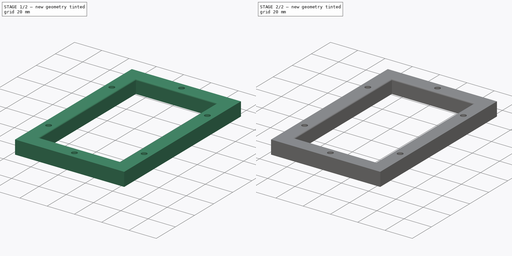
[diagram: build sequence overview — one tinted view per stage of 2, left to right]
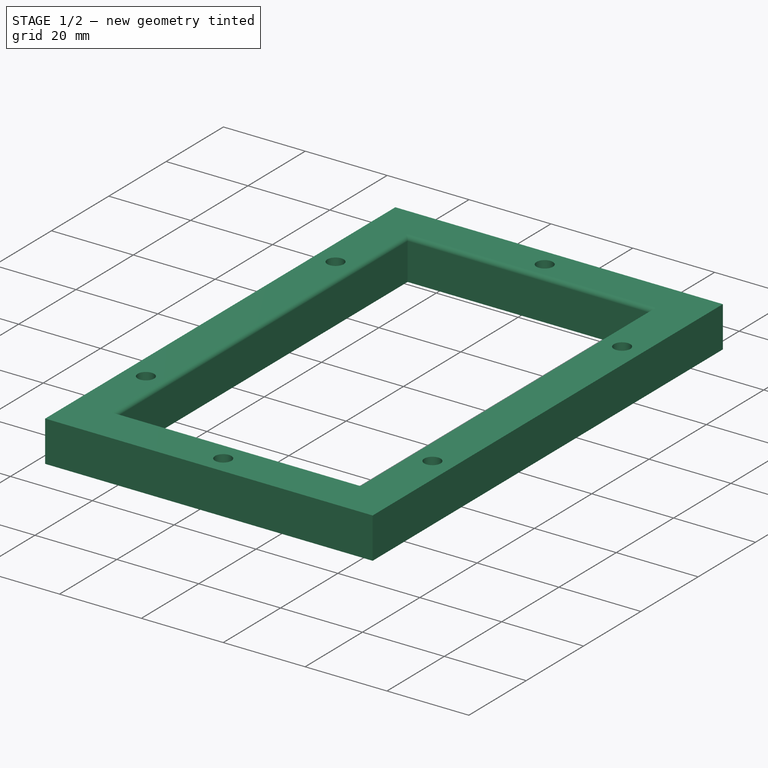
[diagram: stage 1 of 2 — iso view after this stage's code; geometry added in this stage tinted green]
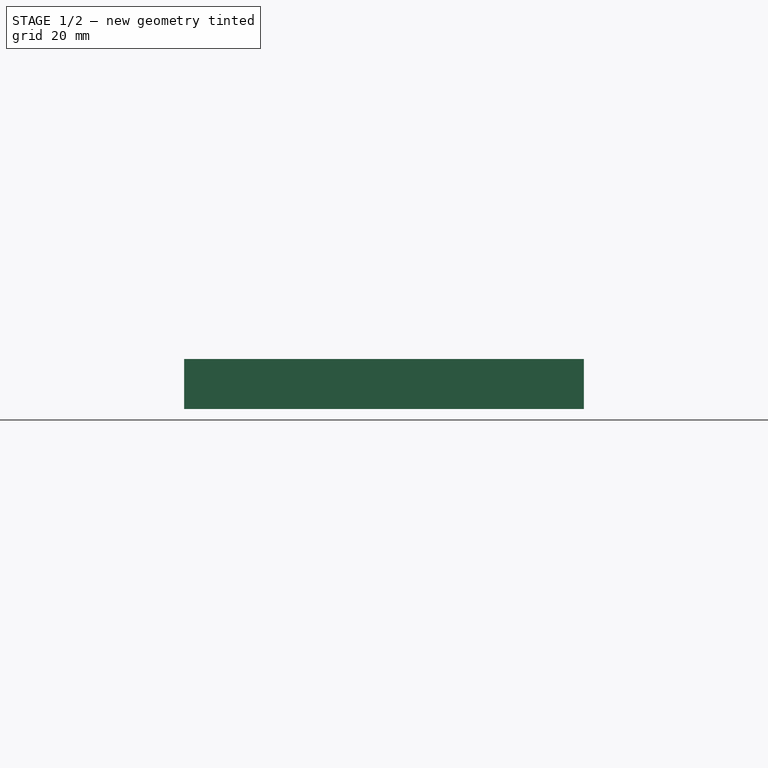
[diagram: stage 1 of 2 — front view after this stage's code; geometry added in this stage tinted green]
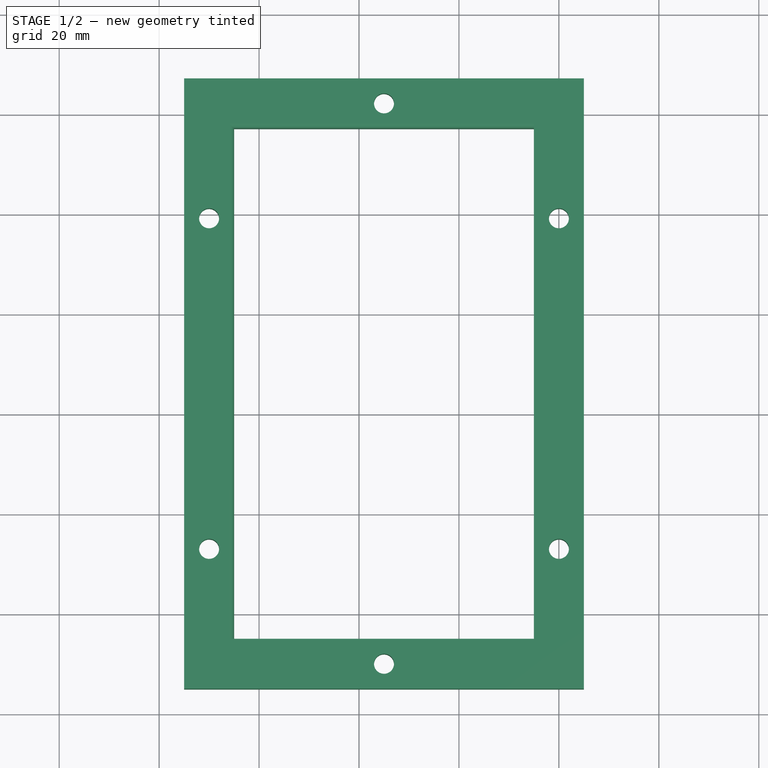
[diagram: stage 1 of 2 — top view after this stage's code; geometry added in this stage tinted green]
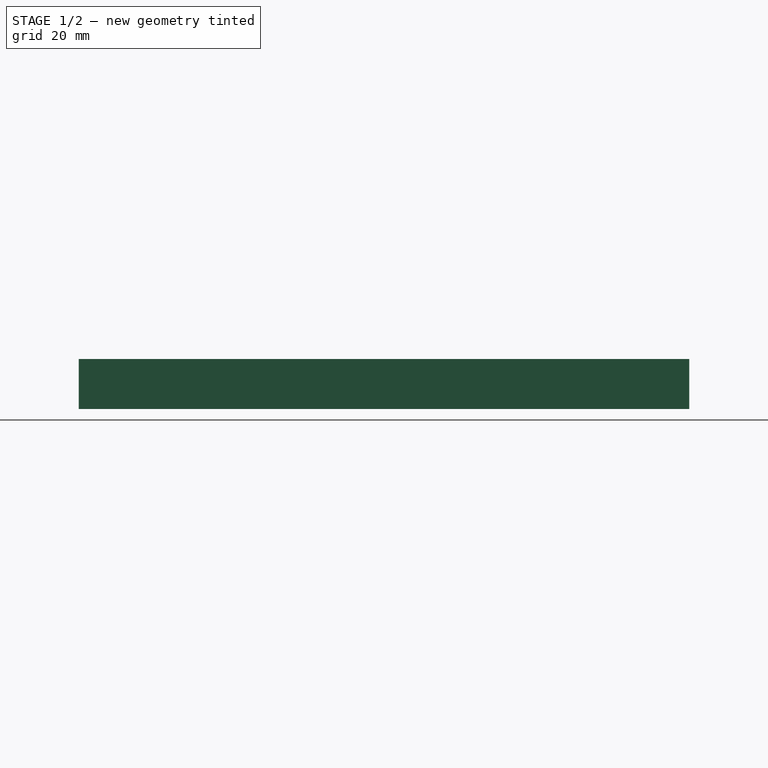
[diagram: stage 1 of 2 — right view after this stage's code; geometry added in this stage tinted green]
FCSTD DOCUMENT  (FreeCAD 0.18R4 (GitTag))
Label: DeckeWohnzimmer
License: All rights reserved
LicenseURL: http://en.wikipedia.org/wiki/All_rights_reserved
objects: PartDesign::Fillet×2, Sketcher::SketchObject×1, PartDesign::Pad×1, PartDesign::Body×1
note: 6 computed .brp shape members not serialized (recipe doc carries the construction recipe); baked Part::Feature solids carry a one-line shape summary decoded from their .brp

FEATURE [Sketcher::SketchObject] Sketch
  sketch-geometry (14):
    g0: LineSegment StartX=5 StartY=127.16 StartZ=0 EndX=85 EndY=127.16 EndZ=0
    g1: LineSegment StartX=85 StartY=127.16 StartZ=0 EndX=85 EndY=5 EndZ=0
    g2: LineSegment StartX=85 StartY=5 StartZ=0 EndX=5 EndY=5 EndZ=0
    g3: LineSegment StartX=5 StartY=5 StartZ=0 EndX=5 EndY=127.16 EndZ=0
    g4: LineSegment StartX=15 StartY=117.16 StartZ=0 EndX=75 EndY=117.16 EndZ=0
    g5: LineSegment StartX=75 StartY=117.16 StartZ=0 EndX=75 EndY=15 EndZ=0
    g6: LineSegment StartX=75 StartY=15 StartZ=0 EndX=15 EndY=15 EndZ=0
    g7: LineSegment StartX=15 StartY=15 StartZ=0 EndX=15 EndY=117.16 EndZ=0
    g8: Circle CenterX=10 CenterY=99.16 CenterZ=0 NormalX=0 NormalY=0 NormalZ=1 AngleXU=0 Radius=2
    g9: Circle CenterX=10 CenterY=33 CenterZ=0 NormalX=0 NormalY=0 NormalZ=1 AngleXU=0 Radius=2
    g10: Circle CenterX=80 CenterY=99.16 CenterZ=0 NormalX=0 NormalY=0 NormalZ=1 AngleXU=0 Radius=2
    g11: Circle CenterX=80 CenterY=33 CenterZ=0 NormalX=0 NormalY=0 NormalZ=1 AngleXU=0 Radius=2
    g12: Circle CenterX=45 CenterY=122.16 CenterZ=0 NormalX=0 NormalY=0 NormalZ=1 AngleXU=0 Radius=2
    g13: Circle CenterX=45 CenterY=10 CenterZ=0 NormalX=0 NormalY=0 NormalZ=1 AngleXU=0 Radius=2
  constraints (42):
    c: Coincident(g0,g1)
    c: Coincident(g1,g2)
    c: Coincident(g2,g3)
    c: Coincident(g3,g0)
    c: Horizontal(g0)
    c: Horizontal(g2)
    c: Vertical(g1)
    c: Vertical(g3)
    c: Coincident(g4,g5)
    c: Coincident(g5,g6)
    c: Coincident(g6,g7)
    c: Coincident(g7,g4)
    c: Horizontal(g4)
    c: Horizontal(g6)
    c: Vertical(g5)
    c: Vertical(g7)
    c: DistanceX(g5,g1) = 10
    c: DistanceX(g2,g6) = 10
    c: DistanceY(g1,g5) = 10
    c: DistanceY(g4,g0) = 10
    c: DistanceY(g-1,g2) = 5
    c: DistanceX(g-1,g2) = 5
    c: Distance(g1) = 122.16
    c: Distance(g0) = 80
    c: Radius(g8) = 2
    c: Equal(g8,g10)
    c: Equal(g8,g11)
    c: Equal(g8,g9)
    c: Distance(g10,g5) = 5
    c: Distance(g11,g5) = 5
    c: Distance(g9,g7) = 5
    c: Distance(g8,g7) = 5
    c: Distance(g8,g0) = 28
    c: Distance(g10,g0) = 28
    c: Distance(g9,g2) = 28
    c: Distance(g11,g2) = 28
    c: Distance(g12,g3) = 40
    c: Equal(g10,g12)
    c: Distance(g12,g0) = 5
    c: Radius(g13) = 2
    c: Distance(g13,g3) = 40
    c: Distance(g13,g2) = 5
FEATURE [PartDesign::Pad] Pad
  Length = 10
  Length2 = 100
  Profile = -> Sketch
  Type = 0
FEATURE [PartDesign::Fillet] Fillet
  Base = -> Pad [Edge24,Edge16]
  BaseFeature = -> Pad
  Radius = 1
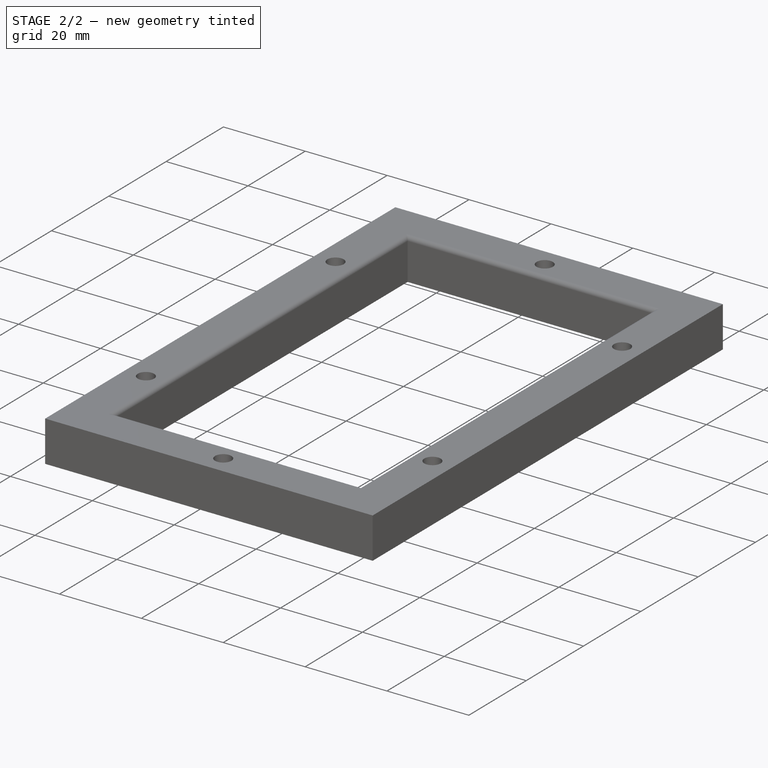
[diagram: stage 2 of 2 — iso view after this stage's code; geometry added in this stage tinted green]
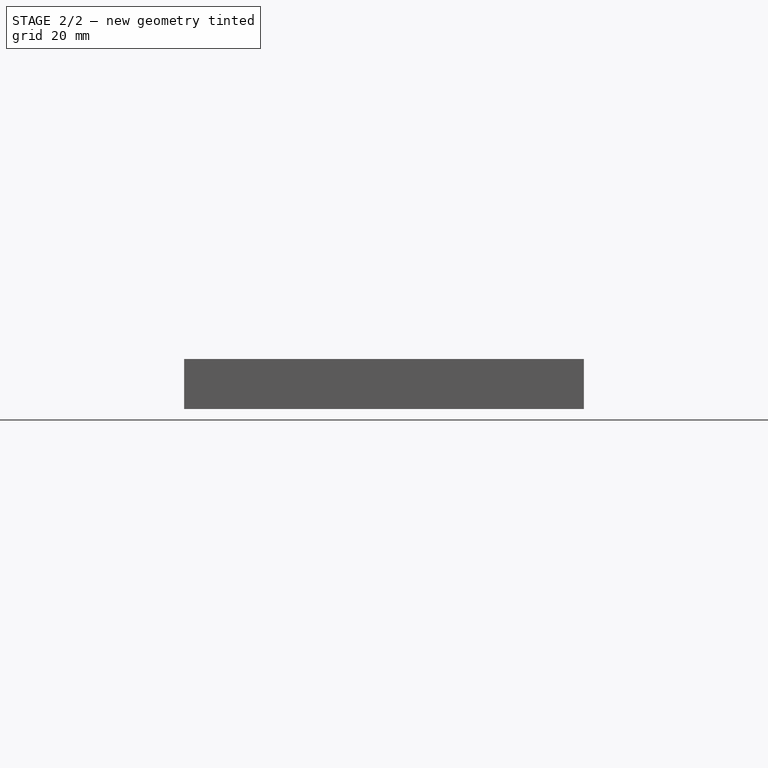
[diagram: stage 2 of 2 — front view after this stage's code; geometry added in this stage tinted green]
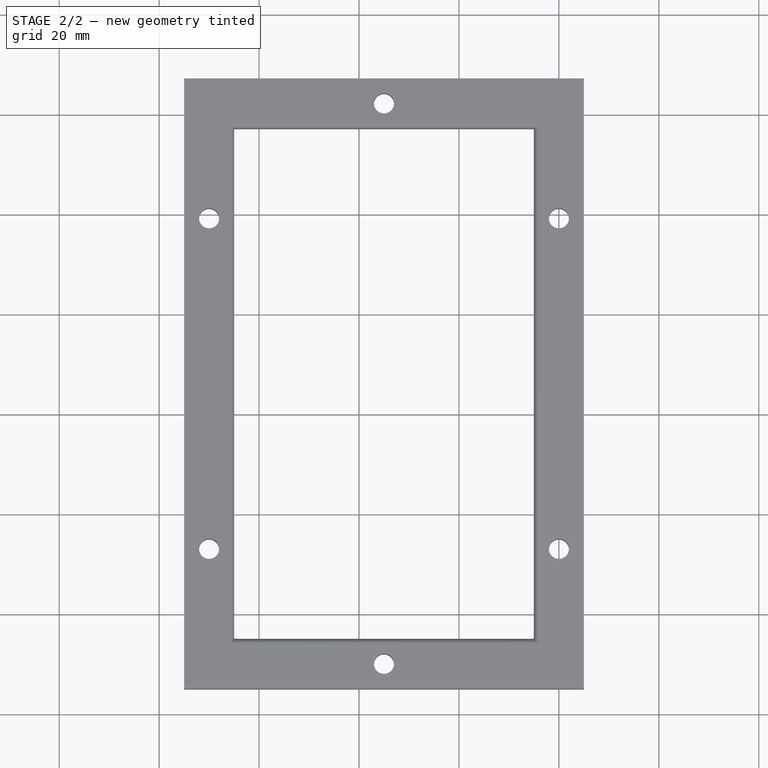
[diagram: stage 2 of 2 — top view after this stage's code; geometry added in this stage tinted green]
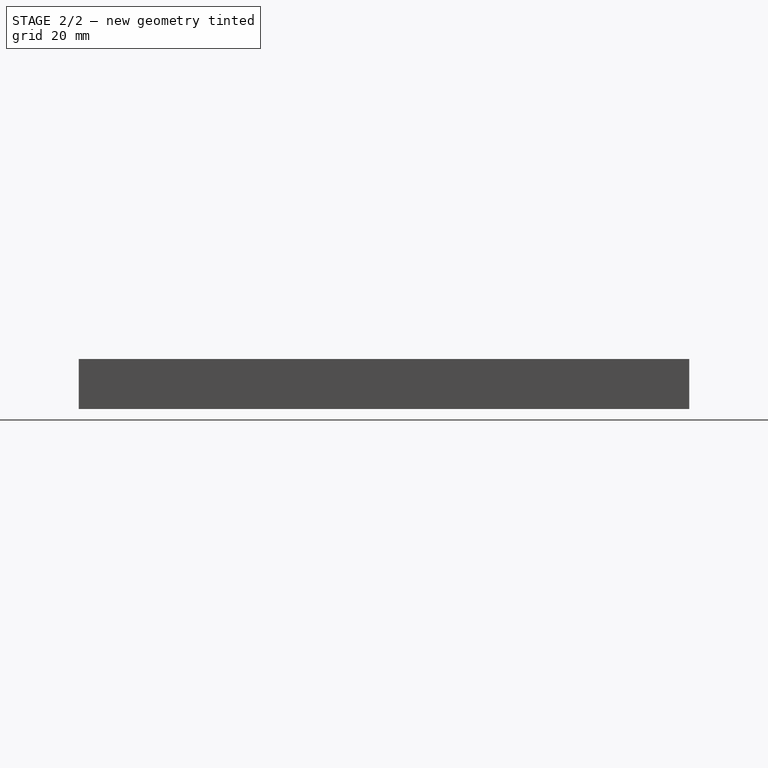
[diagram: stage 2 of 2 — right view after this stage's code; geometry added in this stage tinted green]
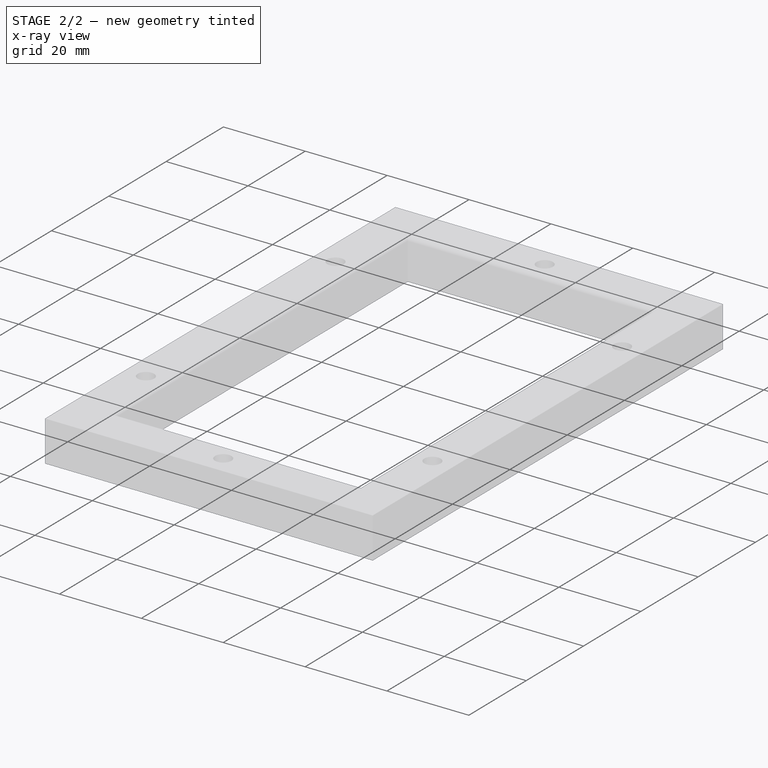
[diagram: stage 2 of 2 — x-ray composite at the iso view; earlier geometry ghosted, this stage's added geometry solid]
FEATURE [PartDesign::Fillet] Fillet001
  Base = -> Fillet [Edge9,Edge27]
  BaseFeature = -> Fillet
  Radius = 1
FEATURE [PartDesign::Body] Body
  Group = -> [Sketch,Pad,Fillet,Fillet001]
  Origin = -> Origin
  Tip = -> Fillet001
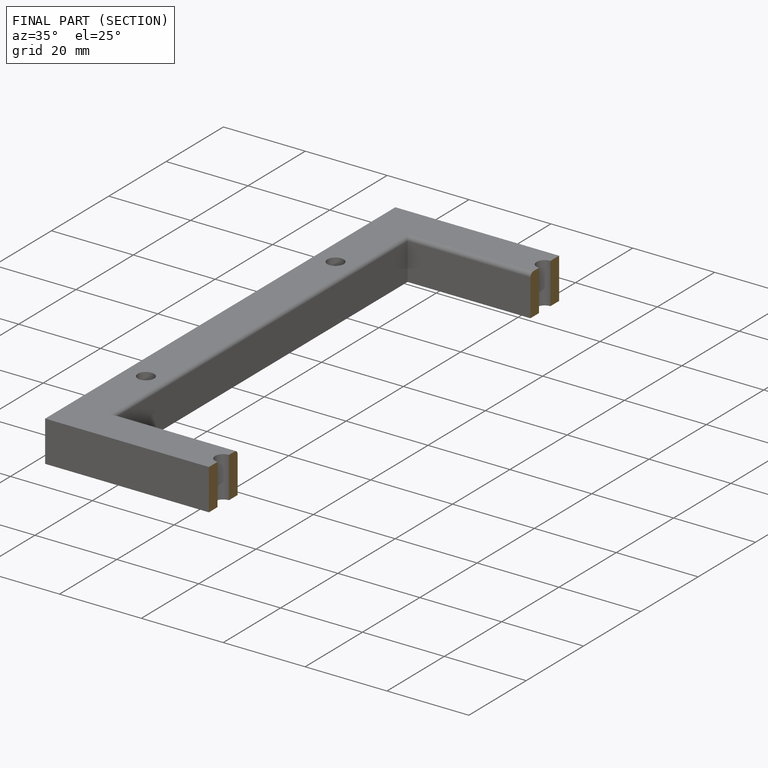
[diagram: finished part — half-section view (interior)]
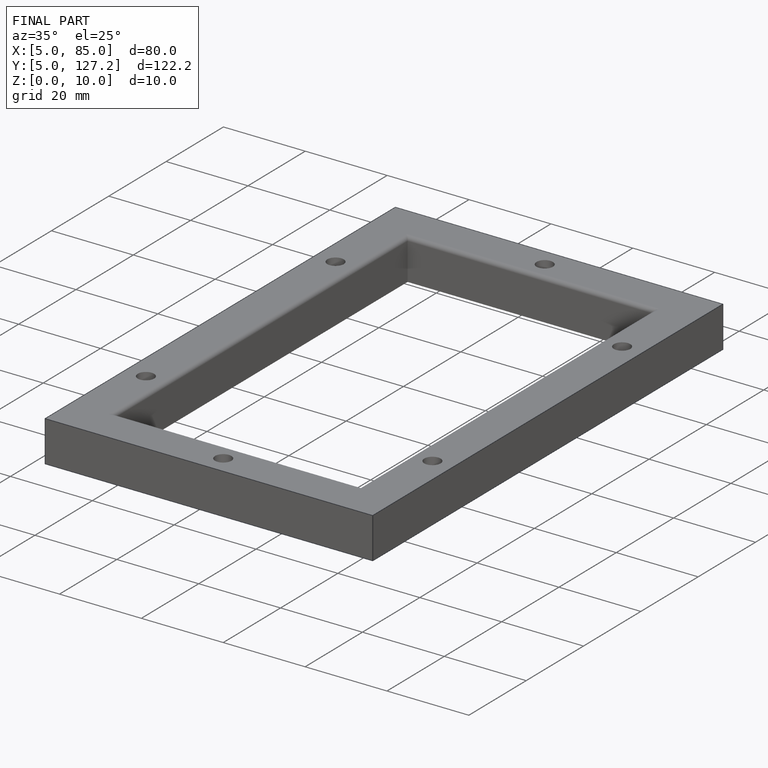
[diagram: finished part — iso view with bounding-box wireframe]
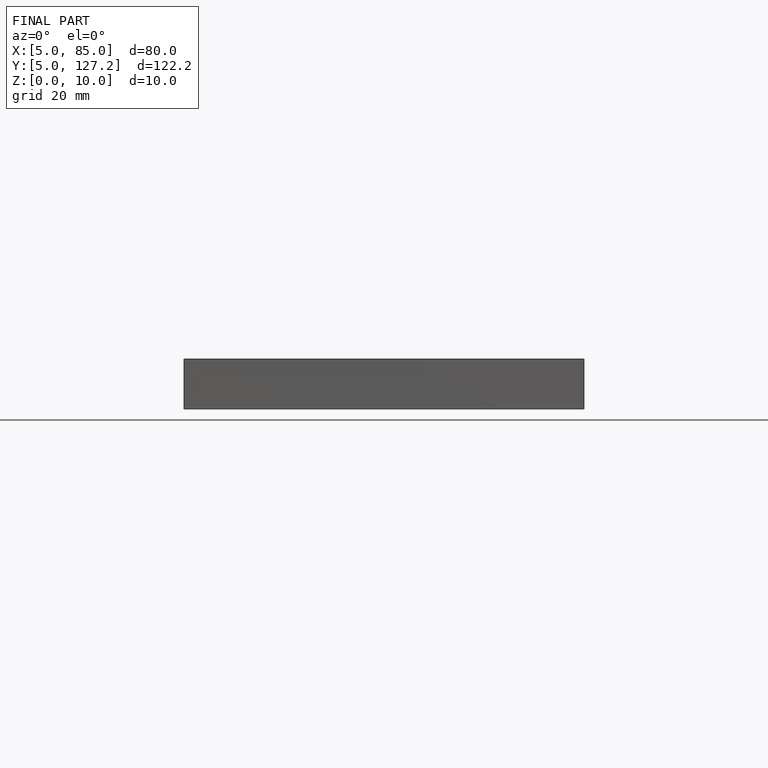
[diagram: finished part — front view with bounding-box wireframe]
